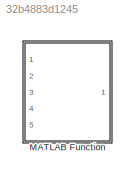
MODEL slx_32b4883d1245
KIND model
CONFIG AbsTol = auto
CONFIG EnableMultiTasking = off
CONFIG FixedStep = auto
CONFIG MaxStep = auto
CONFIG MinStep = auto
CONFIG RelTol = 1e-3
CONFIG SampleTimeConstraint = Unconstrained
CONFIG Solver = VariableStepAuto
CONFIG SolverName = VariableStepAuto
CONFIG StartTime = 0.0
CONFIG StopTime = 10.0
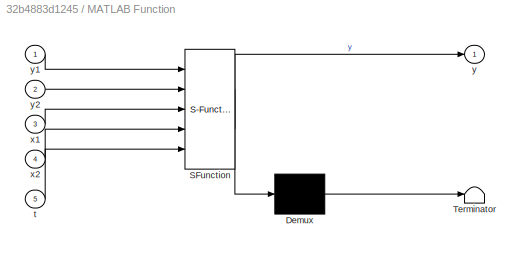
BLOCK [SubSystem] MATLAB Function
  ErrorFcn = Stateflow.Translate.translate
  PermitHierarchicalResolution = ExplicitOnly
  Ports = [5, 1]
  RequestExecContextInheritance = off
  SFBlockType = MATLAB Function
  TreatAsAtomicUnit = on
BLOCK [Demux] MATLAB Function/ Demux 
  Outputs = 1
  Ports = [1, 1]
BLOCK [S-Function] MATLAB Function/ SFunction 
  EnableBusSupport = off
  FunctionName = sf_sfun
  PortCounts = [5 2]
  Ports = [5, 2]
  SFcnIsStateOwnerBlock = off
  SFunctionDeploymentMode = off
  Tag = Stateflow S-Function interval_step_function 2
BLOCK [Terminator] MATLAB Function/ Terminator 
BLOCK [Inport] MATLAB Function/t
  IconDisplay = Port number
  Port = 5
BLOCK [Inport] MATLAB Function/x1
  IconDisplay = Port number
  Port = 3
BLOCK [Inport] MATLAB Function/x2
  IconDisplay = Port number
  Port = 4
BLOCK [Outport] MATLAB Function/y
  IconDisplay = Port number
BLOCK [Inport] MATLAB Function/y1
  IconDisplay = Port number
BLOCK [Inport] MATLAB Function/y2
  IconDisplay = Port number
  Port = 2
CHART MATLAB Function states=1 transitions=1
  STATE_LABEL 'eML_blk_kernel()'
  STATE_LABEL 'SCRIPT:\nfunction y = fcn(y1,y2,x1,x2,t)\n\nif (x1<=t)&&(t<x2)\n    y=y1;\nelse\n    y=y2;\nend\n'
